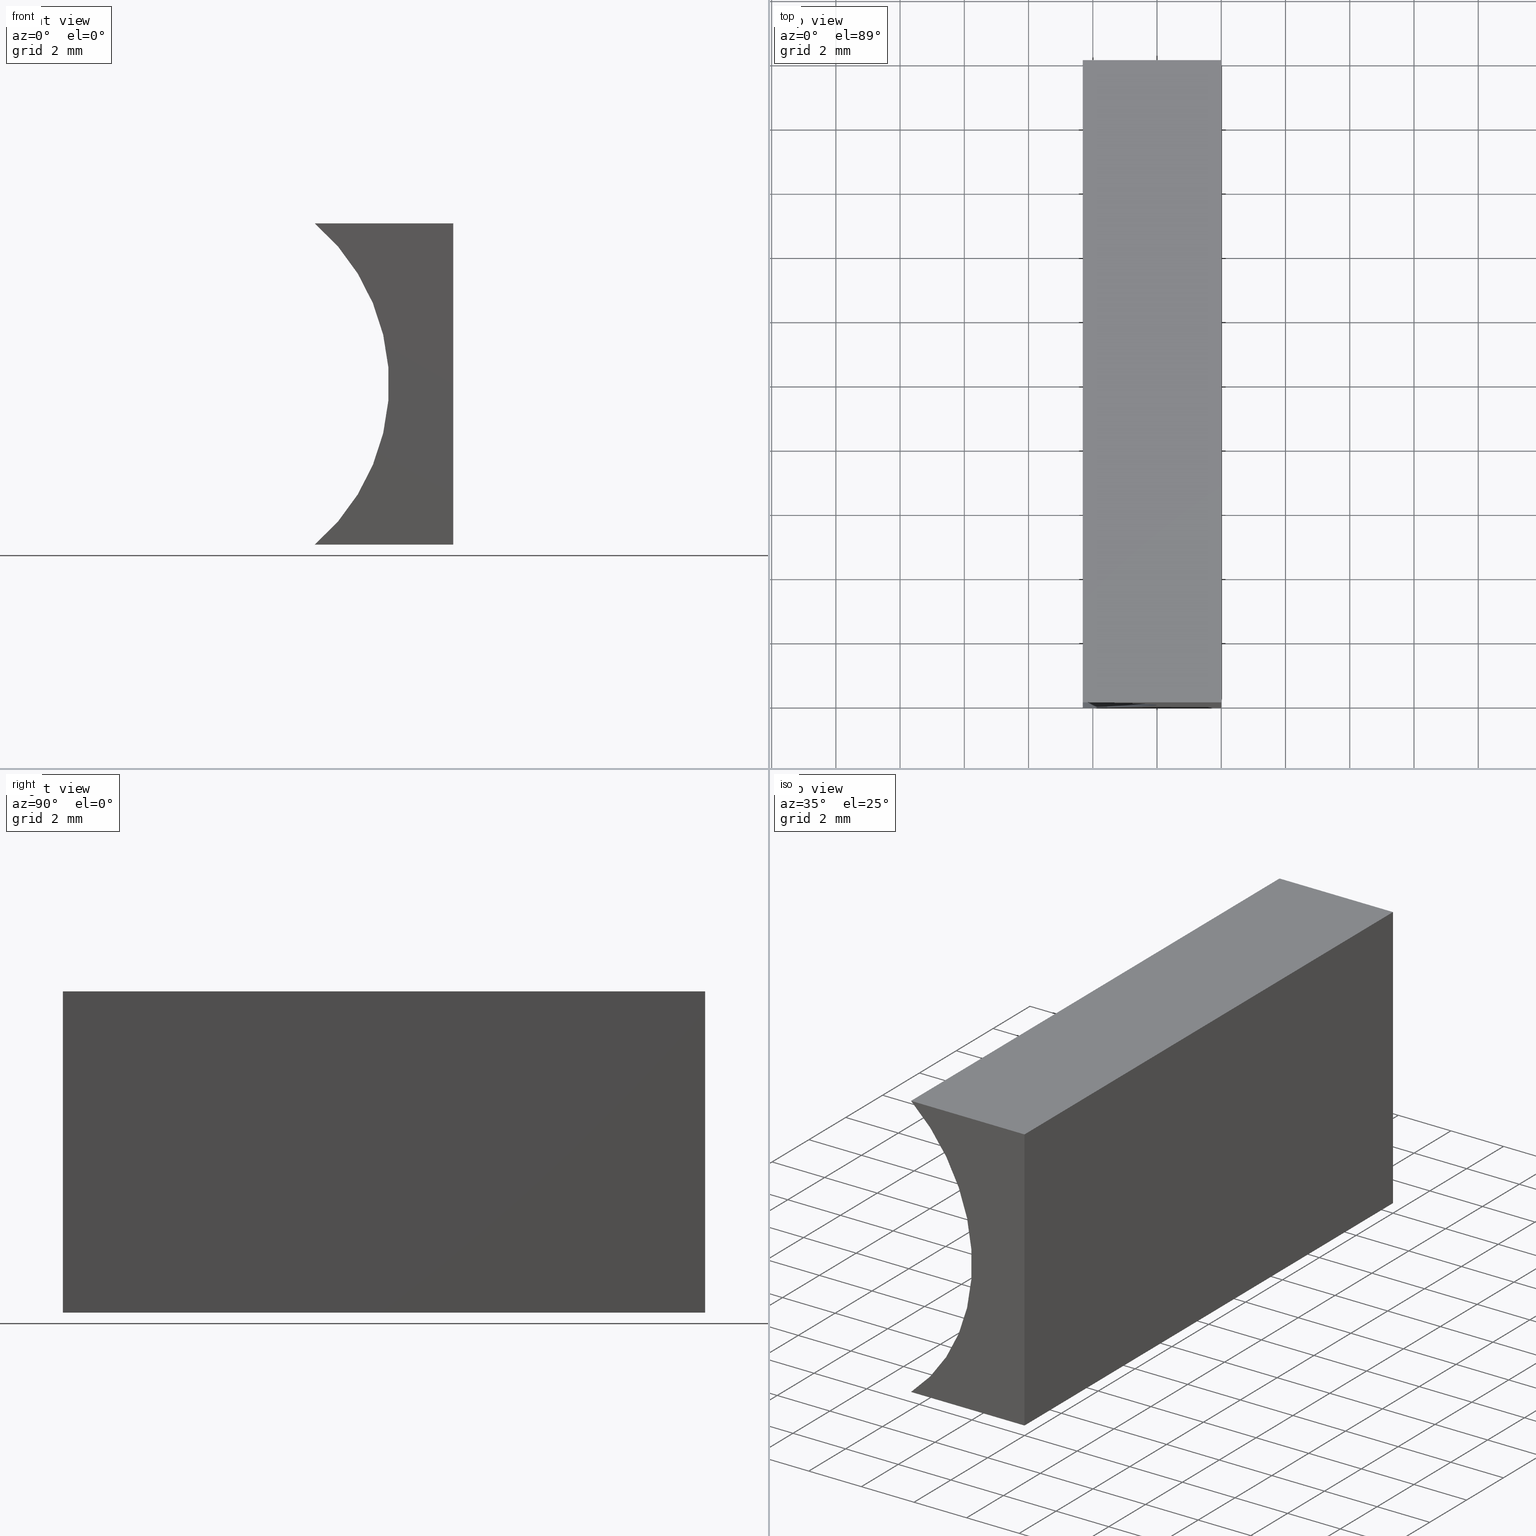
[diagram: canonical four-view strip — front | top / right | iso, engineering-drawing reading convention]
A machine part, canonical four-view strip (front | top / right | iso — engineering-drawing reading convention). The complete STEP part file that produces these views, byte-faithful:
ISO-10303-21;
HEADER;
FILE_DESCRIPTION (( 'STEP AP214' ),
    '1' );
FILE_NAME ('155342.STEP',
    '2019-06-28T02:24:03',
    ( 'user' ),
    ( '΢���й�' ),
    'SwSTEP 2.0',
    'SolidWorks 2016',
    '' );
FILE_SCHEMA (( 'AUTOMOTIVE_DESIGN' ));
ENDSEC;

DATA;
#1 = ADVANCED_FACE ( 'NONE', ( #166 ), #98, .T. ) ;
#2 = LINE ( 'NONE', #150, #75 ) ;
#3 = CARTESIAN_POINT ( 'NONE',  ( 0.0000000000000000000, 20.00000000000000000, 0.0000000000000000000 ) ) ;
#4 = DIRECTION ( 'NONE',  ( -0.0000000000000000000, -1.000000000000000000, -0.0000000000000000000 ) ) ;
#5 =( NAMED_UNIT ( * ) PLANE_ANGLE_UNIT ( ) SI_UNIT ( $, .RADIAN. ) );
#6 = ORIENTED_EDGE ( 'NONE', *, *, #8, .T. ) ;
#7 = DIRECTION ( 'NONE',  ( 6.123233995736766000E-017, 0.0000000000000000000, 1.000000000000000000 ) ) ;
#8 = EDGE_CURVE ( 'NONE', #142, #106, #74, .T. ) ;
#9 = CARTESIAN_POINT ( 'NONE',  ( 6.123233995736766300E-016, 0.0000000000000000000, 10.00000000000000000 ) ) ;
#10 = UNCERTAINTY_MEASURE_WITH_UNIT (LENGTH_MEASURE( 1.000000000000000100E-005 ), #46, 'distance_accuracy_value', 'NONE');
#11 = DIRECTION ( 'NONE',  ( 1.000000000000000000, -0.0000000000000000000, -0.0000000000000000000 ) ) ;
#12 = DIRECTION ( 'NONE',  ( 0.0000000000000000000, 0.0000000000000000000, -1.000000000000000000 ) ) ;
#13 = DIRECTION ( 'NONE',  ( -1.000000000000000000, 0.0000000000000000000, -0.0000000000000000000 ) ) ;
#14 = EDGE_LOOP ( 'NONE', ( #53, #112, #204, #118 ) ) ;
#15 = SURFACE_SIDE_STYLE ('',( #64 ) ) ;
#16 = DIRECTION ( 'NONE',  ( 0.0000000000000000000, 1.000000000000000000, 0.0000000000000000000 ) ) ;
#17 = ORIENTED_EDGE ( 'NONE', *, *, #170, .F. ) ;
#18 = AXIS2_PLACEMENT_3D ( 'NONE', #84, #116, #45 ) ;
#19 = EDGE_LOOP ( 'NONE', ( #86, #161, #40, #190 ) ) ;
#20 = PRODUCT_DEFINITION_CONTEXT ( 'detailed design', #130, 'design' ) ;
#21 = ADVANCED_FACE ( 'NONE', ( #155 ), #108, .F. ) ;
#22 = ORIENTED_EDGE ( 'NONE', *, *, #55, .F. ) ;
#23 = CARTESIAN_POINT ( 'NONE',  ( 0.0000000000000000000, 20.00000000000000000, 0.0000000000000000000 ) ) ;
#24 = DIRECTION ( 'NONE',  ( 0.0000000000000000000, -0.0000000000000000000, 1.000000000000000000 ) ) ;
#25 = UNCERTAINTY_MEASURE_WITH_UNIT (LENGTH_MEASURE( 1.000000000000000100E-005 ), #94, 'distance_accuracy_value', 'NONE');
#26 = EDGE_LOOP ( 'NONE', ( #183, #175, #17, #82 ) ) ;
#27 = DIRECTION ( 'NONE',  ( 0.0000000000000000000, -0.0000000000000000000, 1.000000000000000000 ) ) ;
#28 = AXIS2_PLACEMENT_3D ( 'NONE', #23, #24, #56 ) ;
#29 = APPLICATION_PROTOCOL_DEFINITION ( 'draft international standard', 'automotive_design', 1998, #143 ) ;
#30 = LINE ( 'NONE', #178, #69 ) ;
#31 = LINE ( 'NONE', #90, #134 ) ;
#32 =( NAMED_UNIT ( * ) SI_UNIT ( $, .STERADIAN. ) SOLID_ANGLE_UNIT ( ) );
#33 = DIRECTION ( 'NONE',  ( -0.0000000000000000000, -1.000000000000000000, -0.0000000000000000000 ) ) ;
#34 = LINE ( 'NONE', #184, #189 ) ;
#35 = ORIENTED_EDGE ( 'NONE', *, *, #170, .T. ) ;
#36 = LINE ( 'NONE', #172, #187 ) ;
#37 = EDGE_CURVE ( 'NONE', #120, #142, #30, .T. ) ;
#38 = VERTEX_POINT ( 'NONE', #125 ) ;
#39 = AXIS2_PLACEMENT_3D ( 'NONE', #54, #156, #80 ) ;
#40 = ORIENTED_EDGE ( 'NONE', *, *, #99, .F. ) ;
#41 = CARTESIAN_POINT ( 'NONE',  ( -8.560000000000000500, 0.0000000000000000000, 5.000000000000000000 ) ) ;
#42 = VECTOR ( 'NONE', #182, 1000.000000000000000 ) ;
#43 = CARTESIAN_POINT ( 'NONE',  ( 0.0000000000000000000, 0.0000000000000000000, 0.0000000000000000000 ) ) ;
#44 = ORIENTED_EDGE ( 'NONE', *, *, #99, .T. ) ;
#45 = DIRECTION ( 'NONE',  ( 1.000000000000000000, 0.0000000000000000000, 0.0000000000000000000 ) ) ;
#46 =( LENGTH_UNIT ( ) NAMED_UNIT ( * ) SI_UNIT ( .MILLI., .METRE. ) );
#47 = LINE ( 'NONE', #63, #72 ) ;
#48 = PRODUCT ( '155342', '155342', '', ( #128 ) ) ;
#49 = ORIENTED_EDGE ( 'NONE', *, *, #110, .T. ) ;
#50 = AXIS2_PLACEMENT_3D ( 'NONE', #144, #16, #196 ) ;
#51 =( GEOMETRIC_REPRESENTATION_CONTEXT ( 3 ) GLOBAL_UNCERTAINTY_ASSIGNED_CONTEXT ( ( #10 ) ) GLOBAL_UNIT_ASSIGNED_CONTEXT ( ( #46, #5, #32 ) ) REPRESENTATION_CONTEXT ( 'NONE', 'WORKASPACE' ) );
#52 = PLANE ( 'NONE',  #60 ) ;
#53 = ORIENTED_EDGE ( 'NONE', *, *, #8, .F. ) ;
#54 = CARTESIAN_POINT ( 'NONE',  ( -8.560000000000000500, 20.00000000000000000, 5.000000000000000000 ) ) ;
#55 = EDGE_CURVE ( 'NONE', #103, #106, #198, .T. ) ;
#56 = DIRECTION ( 'NONE',  ( 1.000000000000000000, 0.0000000000000000000, -0.0000000000000000000 ) ) ;
#57 = DIRECTION ( 'NONE',  ( -0.0000000000000000000, -1.000000000000000000, -0.0000000000000000000 ) ) ;
#58 = ORIENTED_EDGE ( 'NONE', *, *, #110, .F. ) ;
#59 = CARTESIAN_POINT ( 'NONE',  ( 6.123233995736766300E-016, 20.00000000000000000, 10.00000000000000000 ) ) ;
#60 = AXIS2_PLACEMENT_3D ( 'NONE', #159, #12, #13 ) ;
#61 = CARTESIAN_POINT ( 'NONE',  ( 0.0000000000000000000, 0.0000000000000000000, 0.0000000000000000000 ) ) ;
#62 = CARTESIAN_POINT ( 'NONE',  ( 6.123233995736766300E-016, 20.00000000000000000, 10.00000000000000000 ) ) ;
#63 = CARTESIAN_POINT ( 'NONE',  ( 0.0000000000000000000, 20.00000000000000000, 0.0000000000000000000 ) ) ;
#64 = SURFACE_STYLE_FILL_AREA ( #145 ) ;
#65 = PRODUCT_RELATED_PRODUCT_CATEGORY ( 'part', '', ( #48 ) ) ;
#66 = MANIFOLD_SOLID_BREP ( '͹̨-����1', #122 ) ;
#67 = AXIS2_PLACEMENT_3D ( 'NONE', #41, #132, #168 ) ;
#68 = VECTOR ( 'NONE', #114, 1000.000000000000000 ) ;
#69 = VECTOR ( 'NONE', #97, 1000.000000000000000 ) ;
#70 = AXIS2_PLACEMENT_3D ( 'NONE', #96, #76, #27 ) ;
#71 = ADVANCED_FACE ( 'NONE', ( #83 ), #123, .F. ) ;
#72 = VECTOR ( 'NONE', #77, 1000.000000000000000 ) ;
#73 = CARTESIAN_POINT ( 'NONE',  ( -4.313401361089089100, 20.00000000000000000, 8.673617379884035500E-016 ) ) ;
#74 = LINE ( 'NONE', #43, #68 ) ;
#75 = VECTOR ( 'NONE', #138, 1000.000000000000000 ) ;
#76 = DIRECTION ( 'NONE',  ( 0.0000000000000000000, 1.000000000000000000, 0.0000000000000000000 ) ) ;
#77 = DIRECTION ( 'NONE',  ( -6.123233995736766000E-017, -0.0000000000000000000, -1.000000000000000000 ) ) ;
#78 = CARTESIAN_POINT ( 'NONE',  ( -4.313401361089089100, 20.00000000000000000, 8.673617379884035500E-016 ) ) ;
#79 = PRESENTATION_LAYER_ASSIGNMENT (  '', '', ( #141 ) ) ;
#80 = DIRECTION ( 'NONE',  ( 0.0000000000000000000, 0.0000000000000000000, 1.000000000000000000 ) ) ;
#81 =( NAMED_UNIT ( * ) PLANE_ANGLE_UNIT ( ) SI_UNIT ( $, .RADIAN. ) );
#82 = ORIENTED_EDGE ( 'NONE', *, *, #55, .T. ) ;
#83 = FACE_OUTER_BOUND ( 'NONE', #26, .T. ) ;
#84 = CARTESIAN_POINT ( 'NONE',  ( 0.0000000000000000000, 0.0000000000000000000, 0.0000000000000000000 ) ) ;
#85 = ORIENTED_EDGE ( 'NONE', *, *, #188, .T. ) ;
#86 = ORIENTED_EDGE ( 'NONE', *, *, #179, .T. ) ;
#87 = ADVANCED_FACE ( 'NONE', ( #89 ), #181, .F. ) ;
#88 = ADVANCED_BREP_SHAPE_REPRESENTATION ( '155342', ( #66, #18 ), #51 ) ;
#89 = FACE_OUTER_BOUND ( 'NONE', #14, .T. ) ;
#90 = CARTESIAN_POINT ( 'NONE',  ( 6.123233995736766300E-016, 20.00000000000000000, 10.00000000000000000 ) ) ;
#91 =( NAMED_UNIT ( * ) SI_UNIT ( $, .STERADIAN. ) SOLID_ANGLE_UNIT ( ) );
#92 = SURFACE_STYLE_USAGE ( .BOTH. , #154 ) ;
#93 = ORIENTED_EDGE ( 'NONE', *, *, #202, .T. ) ;
#94 =( LENGTH_UNIT ( ) NAMED_UNIT ( * ) SI_UNIT ( .MILLI., .METRE. ) );
#95 = CARTESIAN_POINT ( 'NONE',  ( 0.0000000000000000000, 20.00000000000000000, 0.0000000000000000000 ) ) ;
#96 = CARTESIAN_POINT ( 'NONE',  ( -8.560000000000000500, 20.00000000000000000, 5.000000000000000000 ) ) ;
#97 = DIRECTION ( 'NONE',  ( -6.123233995736766000E-017, -0.0000000000000000000, -1.000000000000000000 ) ) ;
#98 = PLANE ( 'NONE',  #70 ) ;
#99 = EDGE_CURVE ( 'NONE', #127, #203, #162, .T. ) ;
#100 = PRODUCT_DEFINITION_SHAPE ( 'NONE', 'NONE',  #101 ) ;
#101 = PRODUCT_DEFINITION ( 'δ֪', '', #124, #20 ) ;
#102 = EDGE_LOOP ( 'NONE', ( #151, #147, #149, #85 ) ) ;
#103 = VERTEX_POINT ( 'NONE', #78 ) ;
#104 = STYLED_ITEM ( 'NONE', ( #164 ), #88 ) ;
#105 =( NAMED_UNIT ( * ) PLANE_ANGLE_UNIT ( ) SI_UNIT ( $, .RADIAN. ) );
#106 = VERTEX_POINT ( 'NONE', #199 ) ;
#107 = DIRECTION ( 'NONE',  ( -0.0000000000000000000, -1.000000000000000000, -0.0000000000000000000 ) ) ;
#108 = PLANE ( 'NONE',  #133 ) ;
#109 = DIRECTION ( 'NONE',  ( -1.000000000000000000, 0.0000000000000000000, 6.123233995736766000E-017 ) ) ;
#110 = EDGE_CURVE ( 'NONE', #171, #103, #192, .T. ) ;
#111 = PLANE ( 'NONE',  #28 ) ;
#112 = ORIENTED_EDGE ( 'NONE', *, *, #37, .F. ) ;
#113 = FACE_OUTER_BOUND ( 'NONE', #139, .T. ) ;
#114 = DIRECTION ( 'NONE',  ( -1.000000000000000000, 0.0000000000000000000, 0.0000000000000000000 ) ) ;
#115 = EDGE_CURVE ( 'NONE', #106, #38, #167, .T. ) ;
#116 = DIRECTION ( 'NONE',  ( 0.0000000000000000000, 0.0000000000000000000, 1.000000000000000000 ) ) ;
#117 =( GEOMETRIC_REPRESENTATION_CONTEXT ( 3 ) GLOBAL_UNCERTAINTY_ASSIGNED_CONTEXT ( ( #176 ) ) GLOBAL_UNIT_ASSIGNED_CONTEXT ( ( #195, #105, #193 ) ) REPRESENTATION_CONTEXT ( 'NONE', 'WORKASPACE' ) );
#118 = ORIENTED_EDGE ( 'NONE', *, *, #115, .F. ) ;
#119 = CIRCLE ( 'NONE', #39, 6.560000000000000500 ) ;
#120 = VERTEX_POINT ( 'NONE', #9 ) ;
#121 = MECHANICAL_DESIGN_GEOMETRIC_PRESENTATION_REPRESENTATION (  '', ( #141 ), #117 ) ;
#122 = CLOSED_SHELL ( 'NONE', ( #165, #71, #148, #21, #1, #87 ) ) ;
#123 = CYLINDRICAL_SURFACE ( 'NONE', #160, 6.559999999999999600 ) ;
#124 = PRODUCT_DEFINITION_FORMATION_WITH_SPECIFIED_SOURCE ( '�κ�', '', #48, .NOT_KNOWN. ) ;
#125 = CARTESIAN_POINT ( 'NONE',  ( -4.313401361089089100, 0.0000000000000000000, 10.00000000000000000 ) ) ;
#126 = EDGE_CURVE ( 'NONE', #171, #142, #2, .T. ) ;
#127 = VERTEX_POINT ( 'NONE', #173 ) ;
#128 = PRODUCT_CONTEXT ( 'NONE', #143, 'mechanical' ) ;
#129 = FILL_AREA_STYLE_COLOUR ( '', #201 ) ;
#130 = APPLICATION_CONTEXT ( 'automotive_design' ) ;
#131 = SURFACE_STYLE_FILL_AREA ( #152 ) ;
#132 = DIRECTION ( 'NONE',  ( -0.0000000000000000000, -1.000000000000000000, -0.0000000000000000000 ) ) ;
#133 = AXIS2_PLACEMENT_3D ( 'NONE', #95, #109, #7 ) ;
#134 = VECTOR ( 'NONE', #57, 1000.000000000000000 ) ;
#135 = ORIENTED_EDGE ( 'NONE', *, *, #126, .T. ) ;
#136 = EDGE_CURVE ( 'NONE', #127, #38, #36, .T. ) ;
#137 = SURFACE_STYLE_USAGE ( .BOTH. , #15 ) ;
#138 = DIRECTION ( 'NONE',  ( -0.0000000000000000000, -1.000000000000000000, -0.0000000000000000000 ) ) ;
#139 = EDGE_LOOP ( 'NONE', ( #6, #22, #58, #135 ) ) ;
#140 = APPLICATION_PROTOCOL_DEFINITION ( 'draft international standard', 'automotive_design', 1998, #130 ) ;
#141 = STYLED_ITEM ( 'NONE', ( #146 ), #66 ) ;
#142 = VERTEX_POINT ( 'NONE', #61 ) ;
#143 = APPLICATION_CONTEXT ( 'automotive_design' ) ;
#144 = CARTESIAN_POINT ( 'NONE',  ( -8.560000000000000500, 0.0000000000000000000, 5.000000000000000000 ) ) ;
#145 = FILL_AREA_STYLE ('',( #200 ) ) ;
#146 = PRESENTATION_STYLE_ASSIGNMENT (( #137 ) ) ;
#147 = ORIENTED_EDGE ( 'NONE', *, *, #126, .F. ) ;
#148 = ADVANCED_FACE ( 'NONE', ( #153 ), #52, .F. ) ;
#149 = ORIENTED_EDGE ( 'NONE', *, *, #202, .F. ) ;
#150 = CARTESIAN_POINT ( 'NONE',  ( 0.0000000000000000000, 20.00000000000000000, 0.0000000000000000000 ) ) ;
#151 = ORIENTED_EDGE ( 'NONE', *, *, #37, .T. ) ;
#152 = FILL_AREA_STYLE ('',( #129 ) ) ;
#153 = FACE_OUTER_BOUND ( 'NONE', #19, .T. ) ;
#154 = SURFACE_SIDE_STYLE ('',( #131 ) ) ;
#155 = FACE_OUTER_BOUND ( 'NONE', #102, .T. ) ;
#156 = DIRECTION ( 'NONE',  ( -0.0000000000000000000, -1.000000000000000000, -0.0000000000000000000 ) ) ;
#157 = VECTOR ( 'NONE', #4, 1000.000000000000000 ) ;
#158 = VECTOR ( 'NONE', #197, 1000.000000000000000 ) ;
#159 = CARTESIAN_POINT ( 'NONE',  ( 6.123233995736766300E-016, 20.00000000000000000, 10.00000000000000000 ) ) ;
#160 = AXIS2_PLACEMENT_3D ( 'NONE', #180, #107, #169 ) ;
#161 = ORIENTED_EDGE ( 'NONE', *, *, #188, .F. ) ;
#162 = LINE ( 'NONE', #59, #42 ) ;
#163 = COLOUR_RGB ( '',1.000000000000000000, 1.000000000000000000, 1.000000000000000000 ) ;
#164 = PRESENTATION_STYLE_ASSIGNMENT (( #92 ) ) ;
#165 = ADVANCED_FACE ( 'NONE', ( #113 ), #111, .F. ) ;
#166 = FACE_OUTER_BOUND ( 'NONE', #194, .T. ) ;
#167 = CIRCLE ( 'NONE', #67, 6.560000000000000500 ) ;
#168 = DIRECTION ( 'NONE',  ( 0.0000000000000000000, 0.0000000000000000000, 1.000000000000000000 ) ) ;
#169 = DIRECTION ( 'NONE',  ( 0.0000000000000000000, 0.0000000000000000000, -1.000000000000000000 ) ) ;
#170 = EDGE_CURVE ( 'NONE', #103, #127, #119, .T. ) ;
#171 = VERTEX_POINT ( 'NONE', #191 ) ;
#172 = CARTESIAN_POINT ( 'NONE',  ( -4.313401361089089100, 20.00000000000000000, 10.00000000000000000 ) ) ;
#173 = CARTESIAN_POINT ( 'NONE',  ( -4.313401361089089100, 20.00000000000000000, 10.00000000000000000 ) ) ;
#174 =( GEOMETRIC_REPRESENTATION_CONTEXT ( 3 ) GLOBAL_UNCERTAINTY_ASSIGNED_CONTEXT ( ( #25 ) ) GLOBAL_UNIT_ASSIGNED_CONTEXT ( ( #94, #81, #91 ) ) REPRESENTATION_CONTEXT ( 'NONE', 'WORKASPACE' ) );
#175 = ORIENTED_EDGE ( 'NONE', *, *, #136, .F. ) ;
#176 = UNCERTAINTY_MEASURE_WITH_UNIT (LENGTH_MEASURE( 1.000000000000000100E-005 ), #195, 'distance_accuracy_value', 'NONE');
#177 = MECHANICAL_DESIGN_GEOMETRIC_PRESENTATION_REPRESENTATION (  '', ( #104 ), #174 ) ;
#178 = CARTESIAN_POINT ( 'NONE',  ( 0.0000000000000000000, 0.0000000000000000000, 0.0000000000000000000 ) ) ;
#179 = EDGE_CURVE ( 'NONE', #38, #120, #34, .T. ) ;
#180 = CARTESIAN_POINT ( 'NONE',  ( -8.560000000000000500, 20.00000000000000000, 5.000000000000000000 ) ) ;
#181 = PLANE ( 'NONE',  #50 ) ;
#182 = DIRECTION ( 'NONE',  ( 1.000000000000000000, -0.0000000000000000000, -0.0000000000000000000 ) ) ;
#183 = ORIENTED_EDGE ( 'NONE', *, *, #115, .T. ) ;
#184 = CARTESIAN_POINT ( 'NONE',  ( 6.123233995736766300E-016, 0.0000000000000000000, 10.00000000000000000 ) ) ;
#185 = SHAPE_DEFINITION_REPRESENTATION ( #100, #88 ) ;
#186 = PRESENTATION_LAYER_ASSIGNMENT (  '', '', ( #104 ) ) ;
#187 = VECTOR ( 'NONE', #33, 1000.000000000000000 ) ;
#188 = EDGE_CURVE ( 'NONE', #203, #120, #31, .T. ) ;
#189 = VECTOR ( 'NONE', #11, 1000.000000000000000 ) ;
#190 = ORIENTED_EDGE ( 'NONE', *, *, #136, .T. ) ;
#191 = CARTESIAN_POINT ( 'NONE',  ( 0.0000000000000000000, 20.00000000000000000, 0.0000000000000000000 ) ) ;
#192 = LINE ( 'NONE', #3, #158 ) ;
#193 =( NAMED_UNIT ( * ) SI_UNIT ( $, .STERADIAN. ) SOLID_ANGLE_UNIT ( ) );
#194 = EDGE_LOOP ( 'NONE', ( #49, #35, #44, #93 ) ) ;
#195 =( LENGTH_UNIT ( ) NAMED_UNIT ( * ) SI_UNIT ( .MILLI., .METRE. ) );
#196 = DIRECTION ( 'NONE',  ( 0.0000000000000000000, -0.0000000000000000000, 1.000000000000000000 ) ) ;
#197 = DIRECTION ( 'NONE',  ( -1.000000000000000000, 0.0000000000000000000, 0.0000000000000000000 ) ) ;
#198 = LINE ( 'NONE', #73, #157 ) ;
#199 = CARTESIAN_POINT ( 'NONE',  ( -4.313401361089089100, 0.0000000000000000000, 8.673617379884035500E-016 ) ) ;
#200 = FILL_AREA_STYLE_COLOUR ( '', #163 ) ;
#201 = COLOUR_RGB ( '',1.000000000000000000, 1.000000000000000000, 1.000000000000000000 ) ;
#202 = EDGE_CURVE ( 'NONE', #203, #171, #47, .T. ) ;
#203 = VERTEX_POINT ( 'NONE', #62 ) ;
#204 = ORIENTED_EDGE ( 'NONE', *, *, #179, .F. ) ;
ENDSEC;
END-ISO-10303-21;
